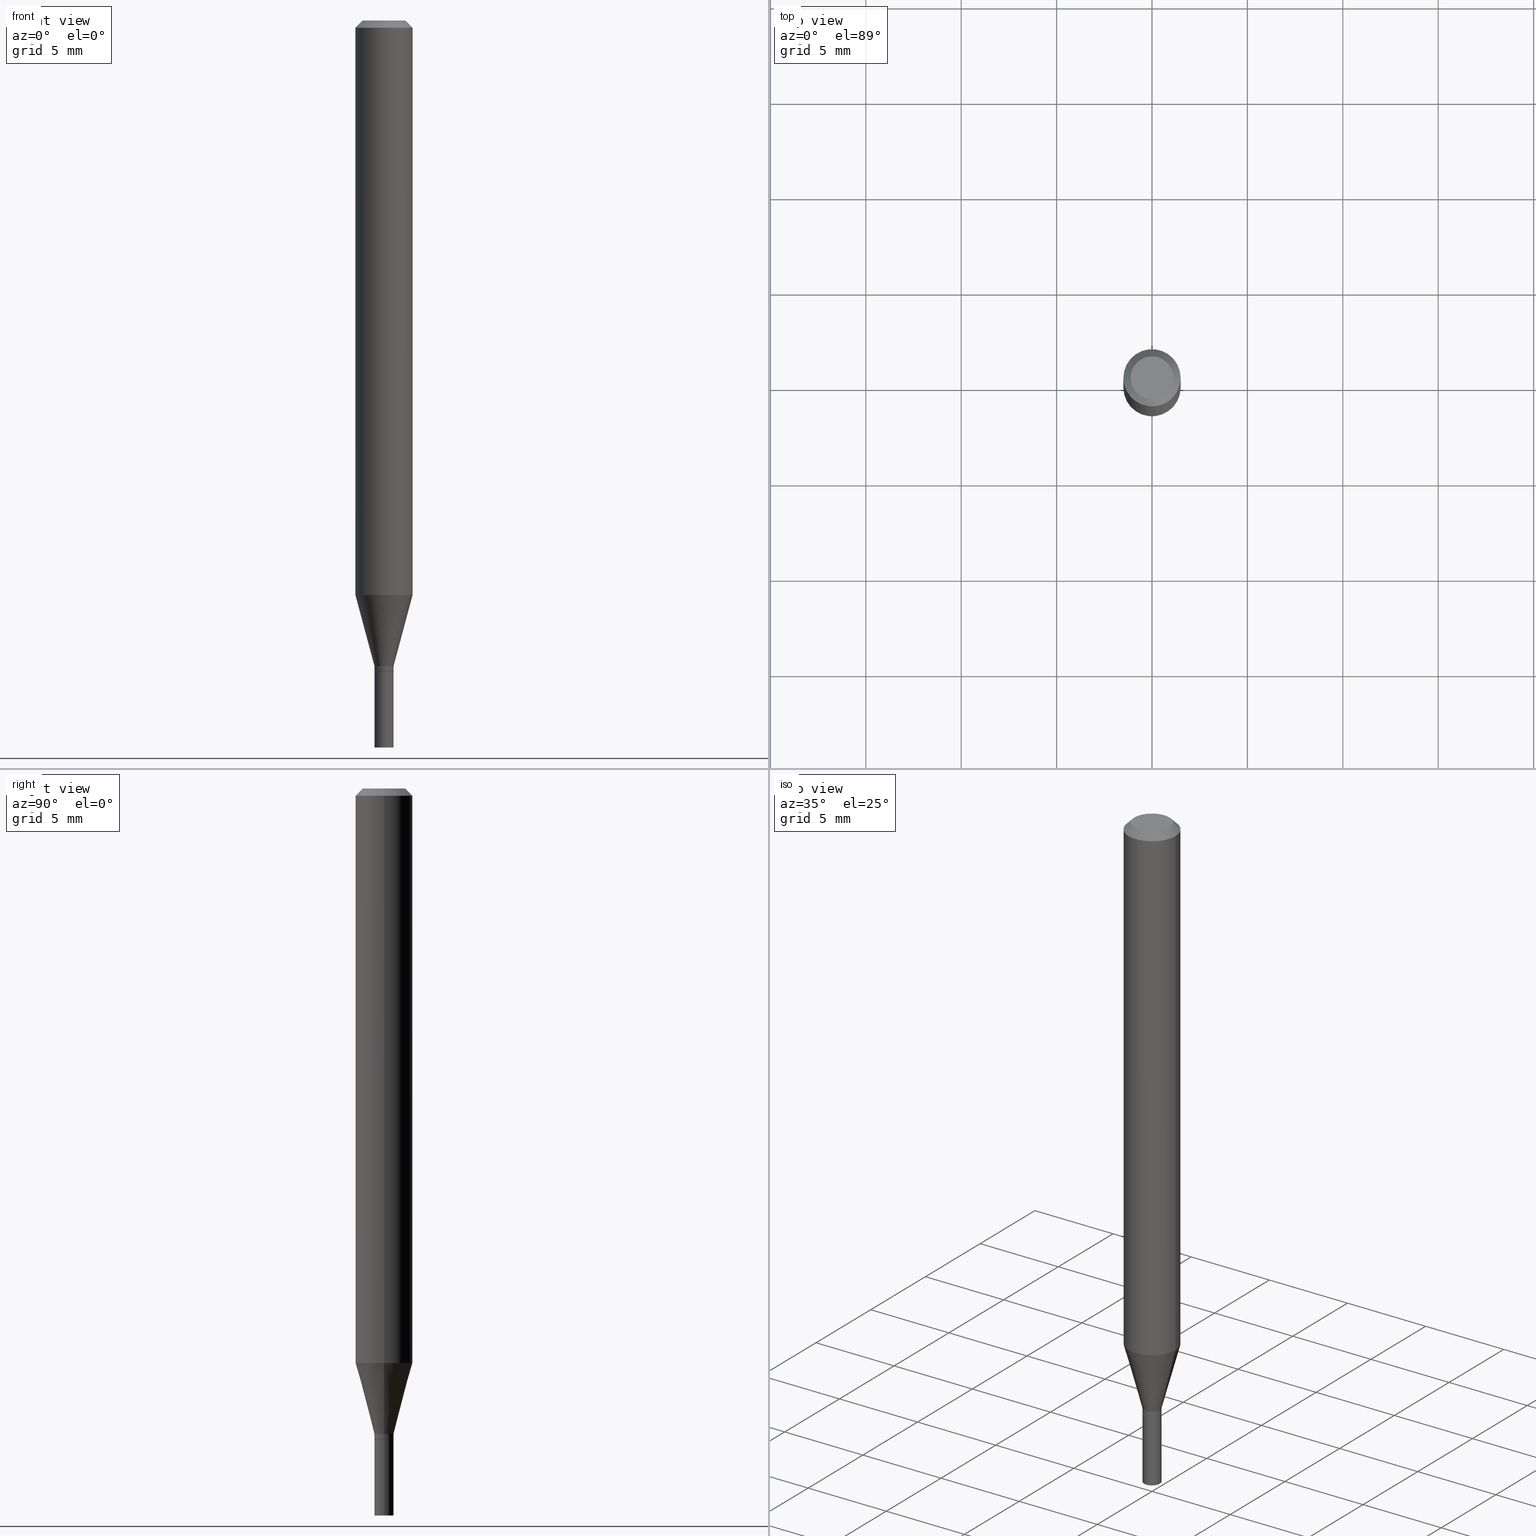
[diagram: canonical four-view strip — front | top / right | iso, engineering-drawing reading convention]
A machine part, canonical four-view strip (front | top / right | iso — engineering-drawing reading convention). The complete STEP part file that produces these views, byte-faithful:
ISO-10303-21;
HEADER;
FILE_DESCRIPTION (( 'STEP AP203' ),
    '1' );
FILE_NAME ('48522.STEP',
    '2024-03-12T19:28:23',
    ( '' ),
    ( '' ),
    'SwSTEP 2.0',
    'SolidWorks 2023',
    '' );
FILE_SCHEMA (( 'CONFIG_CONTROL_DESIGN' ));
ENDSEC;

DATA;
#1 = DIRECTION ( 'NONE',  ( 1.000000000000000000, -6.982962677686278543E-15, 0.000000000000000000 ) ) ;
#2 = CARTESIAN_POINT ( 'NONE',  ( 0.01969999999999990856, -1.375643647504188200E-16, 9.606068248317949427E-31 ) ) ;
#3 = FACE_OUTER_BOUND ( 'NONE', #15, .T. ) ;
#4 = AXIS2_PLACEMENT_3D ( 'NONE', #284, #216, #275 ) ;
#5 = ADVANCED_FACE ( 'NONE', ( #171 ), #450, .T. ) ;
#6 = LINE ( 'NONE', #2, #352 ) ;
#7 = DIRECTION ( 'NONE',  ( -2.445468806185136597E-29, 3.491481338843145583E-15, 1.000000000000000000 ) ) ;
#8 = ORIENTED_EDGE ( 'NONE', *, *, #166, .F. ) ;
#9 = ORGANIZATION ( 'UNSPECIFIED', 'UNSPECIFIED', '' ) ;
#10 = FACE_OUTER_BOUND ( 'NONE', #259, .T. ) ;
#11 = DIRECTION ( 'NONE',  ( -2.445468806185136597E-29, 3.491481338843145583E-15, 1.000000000000000000 ) ) ;
#12 = VERTEX_POINT ( 'NONE', #198 ) ;
#13 = AXIS2_PLACEMENT_3D ( 'NONE', #358, #360, #113 ) ;
#14 =( LENGTH_UNIT ( ) NAMED_UNIT ( * ) SI_UNIT ( $, .METRE. ) );
#15 = EDGE_LOOP ( 'NONE', ( #240, #99, #265, #268 ) ) ;
#16 = LINE ( 'NONE', #18, #438 ) ;
#17 = CARTESIAN_POINT ( 'NONE',  ( 0.000000000000000000, 0.000000000000000000, 0.000000000000000000 ) ) ;
#18 = CARTESIAN_POINT ( 'NONE',  ( 0.05905000000000001914, -4.123439461173741806E-16, 2.879382386107500921E-30 ) ) ;
#19 = ADVANCED_FACE ( 'NONE', ( #10 ), #389, .T. ) ;
#20 = AXIS2_PLACEMENT_3D ( 'NONE', #242, #465, #379 ) ;
#21 = APPROVAL_ROLE ( '' ) ;
#22 = ORIENTED_EDGE ( 'NONE', *, *, #400, .F. ) ;
#23 = CARTESIAN_POINT ( 'NONE',  ( -0.05905000000000001914, -3.718331978600737710E-15, -1.185143800722164409 ) ) ;
#24 = ORIENTED_EDGE ( 'NONE', *, *, #347, .T. ) ;
#25 = FACE_OUTER_BOUND ( 'NONE', #202, .T. ) ;
#26 = APPROVAL ( #405, 'UNSPECIFIED' ) ;
#27 = EDGE_CURVE ( 'NONE', #87, #435, #377, .T. ) ;
#28 = ORIENTED_EDGE ( 'NONE', *, *, #431, .F. ) ;
#29 = CIRCLE ( 'NONE', #346, 0.05905000000000001914 ) ;
#30 = FACE_OUTER_BOUND ( 'NONE', #56, .T. ) ;
#31 = EDGE_LOOP ( 'NONE', ( #361, #366, #410, #135 ) ) ;
#32 = FACE_OUTER_BOUND ( 'NONE', #380, .T. ) ;
#33 = DIRECTION ( 'NONE',  ( -2.445468806185136597E-29, 3.491481338843145583E-15, 1.000000000000000000 ) ) ;
#34 = AXIS2_PLACEMENT_3D ( 'NONE', #254, #7, #158 ) ;
#35 = DIRECTION ( 'NONE',  ( -2.445468806185136597E-29, 3.491481338843145583E-15, 1.000000000000000000 ) ) ;
#36 = DIRECTION ( 'NONE',  ( 1.000000000000000000, -6.982962677686270655E-15, 0.000000000000000000 ) ) ;
#37 = EDGE_CURVE ( 'NONE', #200, #418, #196, .T. ) ;
#38 = DIRECTION ( 'NONE',  ( -2.445468806185136597E-29, 3.491481338843145583E-15, 1.000000000000000000 ) ) ;
#39 = ADVANCED_FACE ( 'NONE', ( #458 ), #371, .T. ) ;
#40 = DIRECTION ( 'NONE',  ( -2.445468806185136877E-29, 3.491481338843145188E-15, 1.000000000000000000 ) ) ;
#41 = COORDINATED_UNIVERSAL_TIME_OFFSET ( 5, 0, .BEHIND. ) ;
#42 = DIRECTION ( 'NONE',  ( -0.7071067811865656694, 7.493145998870420424E-15, 0.7071067811865294761 ) ) ;
#43 = EDGE_LOOP ( 'NONE', ( #454, #163, #24, #414 ) ) ;
#44 = COORDINATED_UNIVERSAL_TIME_OFFSET ( 5, 0, .BEHIND. ) ;
#45 = EDGE_CURVE ( 'NONE', #190, #274, #396, .T. ) ;
#46 = DIRECTION ( 'NONE',  ( 1.000000000000000000, -6.982962677686278543E-15, 0.000000000000000000 ) ) ;
#47 = ORIENTED_EDGE ( 'NONE', *, *, #461, .F. ) ;
#48 = CC_DESIGN_APPROVAL ( #26, ( #141 ) ) ;
#49 = ORIENTED_EDGE ( 'NONE', *, *, #155, .T. ) ;
#50 = AXIS2_PLACEMENT_3D ( 'NONE', #207, #460, #424 ) ;
#51 = APPROVAL_ROLE ( '' ) ;
#52 = ADVANCED_FACE ( 'NONE', ( #430 ), #278, .F. ) ;
#53 = ORIENTED_EDGE ( 'NONE', *, *, #136, .F. ) ;
#54 = DIRECTION ( 'NONE',  ( -2.445468806185136877E-29, 3.491481338843145188E-15, 1.000000000000000000 ) ) ;
#55 = DIRECTION ( 'NONE',  ( 1.000000000000000000, 0.000000000000000000, 0.000000000000000000 ) ) ;
#56 = EDGE_LOOP ( 'NONE', ( #220, #49, #365, #359 ) ) ;
#57 = CARTESIAN_POINT ( 'NONE',  ( 0.01919999999999999485, -4.821386580808499461E-15, -1.342500000000000249 ) ) ;
#58 = CIRCLE ( 'NONE', #234, 0.01969999999999999876 ) ;
#59 = PERSON_AND_ORGANIZATION ( #333, #9 ) ;
#60 = ORIENTED_EDGE ( 'NONE', *, *, #381, .T. ) ;
#61 = PERSON_AND_ORGANIZATION_ROLE ( 'creator' ) ;
#62 = VERTEX_POINT ( 'NONE', #350 ) ;
#63 = DIRECTION ( 'NONE',  ( 1.000000000000000000, -6.982962677686265922E-15, 4.876176775795935793E-29 ) ) ;
#64 = ORIENTED_EDGE ( 'NONE', *, *, #27, .T. ) ;
#65 = CARTESIAN_POINT ( 'NONE',  ( 0.05905000000000001914, -4.647161662000214077E-16, -0.01499999999999999944 ) ) ;
#66 = DIRECTION ( 'NONE',  ( 1.000000000000000000, -6.982962677686266711E-15, 0.000000000000000000 ) ) ;
#67 = EDGE_LOOP ( 'NONE', ( #344, #139 ) ) ;
#68 = DIRECTION ( 'NONE',  ( -2.445468806185136597E-29, 3.491481338843145583E-15, 1.000000000000000000 ) ) ;
#69 = DIRECTION ( 'NONE',  ( 1.000000000000000000, -6.982962677686265922E-15, 4.819687581474398999E-29 ) ) ;
#70 = CARTESIAN_POINT ( 'NONE',  ( 3.576687321579069994E-29, -5.368277968210015545E-15, -1.500000000000000222 ) ) ;
#71 = CC_DESIGN_APPROVAL ( #209, ( #408 ) ) ;
#72 = CARTESIAN_POINT ( 'NONE',  ( 0.000000000000000000, 0.000000000000000000, 0.000000000000000000 ) ) ;
#73 = AXIS2_PLACEMENT_3D ( 'NONE', #118, #38, #434 ) ;
#74 = CC_DESIGN_DATE_AND_TIME_ASSIGNMENT ( #86, #401, ( #141 ) ) ;
#75 = CARTESIAN_POINT ( 'NONE',  ( 0.01969999999999989468, -4.788217508089488526E-15, -1.331999999999999851 ) ) ;
#76 = EDGE_CURVE ( 'NONE', #127, #443, #241, .T. ) ;
#77 = DIRECTION ( 'NONE',  ( 0.7071067811865396902, -7.319954787623229224E-15, -0.7071067811865553443 ) ) ;
#78 = CARTESIAN_POINT ( 'NONE',  ( 0.000000000000000000, 0.000000000000000000, 0.000000000000000000 ) ) ;
#79 = DIRECTION ( 'NONE',  ( 1.000000000000000000, -6.982962677686266711E-15, 0.000000000000000000 ) ) ;
#80 = VECTOR ( 'NONE', #54, 39.37007874015748143 ) ;
#81 = ADVANCED_FACE ( 'NONE', ( #32 ), #104, .T. ) ;
#82 = FACE_OUTER_BOUND ( 'NONE', #140, .T. ) ;
#83 = CALENDAR_DATE ( 2024, 12, 3 ) ;
#84 = CARTESIAN_POINT ( 'NONE',  ( 3.668203209277705088E-31, -5.237222008264718399E-17, -0.01499999999999999944 ) ) ;
#85 = APPROVAL_PERSON_ORGANIZATION ( #185, #209, #51 ) ;
#86 = DATE_AND_TIME ( #164, #243 ) ;
#87 = VERTEX_POINT ( 'NONE', #75 ) ;
#88 = CC_DESIGN_PERSON_AND_ORGANIZATION_ASSIGNMENT ( #160, #446, ( #408 ) ) ;
#89 = AXIS2_PLACEMENT_3D ( 'NONE', #348, #115, #184 ) ;
#90 = DIRECTION ( 'NONE',  ( 1.000000000000000000, -6.982962677686265922E-15, 4.819687581474398999E-29 ) ) ;
#91 = EDGE_LOOP ( 'NONE', ( #263, #225 ) ) ;
#92 = ADVANCED_FACE ( 'NONE', ( #143 ), #214, .T. ) ;
#93 = DIRECTION ( 'NONE',  ( -2.445468806185136597E-29, 3.491481338843145583E-15, 1.000000000000000000 ) ) ;
#94 = PERSON_AND_ORGANIZATION ( #333, #9 ) ;
#95 = ADVANCED_FACE ( 'NONE', ( #3 ), #286, .T. ) ;
#96 = ORIENTED_EDGE ( 'NONE', *, *, #425, .T. ) ;
#97 = AXIS2_PLACEMENT_3D ( 'NONE', #116, #258, #124 ) ;
#98 = CIRCLE ( 'NONE', #122, 0.04404999999999999888 ) ;
#99 = ORIENTED_EDGE ( 'NONE', *, *, #419, .T. ) ;
#100 = DIRECTION ( 'NONE',  ( 1.000000000000000000, -6.982962677686266711E-15, 0.000000000000000000 ) ) ;
#101 = ORIENTED_EDGE ( 'NONE', *, *, #343, .F. ) ;
#102 = ORIENTED_EDGE ( 'NONE', *, *, #419, .F. ) ;
#103 = EDGE_CURVE ( 'NONE', #435, #200, #219, .T. ) ;
#104 = CYLINDRICAL_SURFACE ( 'NONE', #341, 0.05905000000000001914 ) ;
#105 = AXIS2_PLACEMENT_3D ( 'NONE', #248, #11, #79 ) ;
#106 = CARTESIAN_POINT ( 'NONE',  ( -0.01969999999999999876, 1.399769189447397278E-16, -9.690302127802162501E-31 ) ) ;
#107 = EDGE_CURVE ( 'NONE', #330, #418, #181, .T. ) ;
#108 = LINE ( 'NONE', #106, #253 ) ;
#109 = CARTESIAN_POINT ( 'NONE',  ( 3.281819137900453618E-29, -4.685567956727501750E-15, -1.342000000000000304 ) ) ;
#110 = APPROVAL_PERSON_ORGANIZATION ( #309, #26, #21 ) ;
#111 = ADVANCED_FACE ( 'NONE', ( #322 ), #354, .F. ) ;
#112 = DIRECTION ( 'NONE',  ( -2.445468806185136597E-29, 3.491481338843145583E-15, 1.000000000000000000 ) ) ;
#113 = DIRECTION ( 'NONE',  ( -1.000000000000000000, 6.982962677686265922E-15, -4.876176775795935793E-29 ) ) ;
#114 = VECTOR ( 'NONE', #335, 39.37007874015748854 ) ;
#115 = DIRECTION ( 'NONE',  ( -2.445468806185136597E-29, 3.491481338843145583E-15, 1.000000000000000000 ) ) ;
#116 = CARTESIAN_POINT ( 'NONE',  ( 0.000000000000000000, 0.000000000000000000, 0.000000000000000000 ) ) ;
#117 = VECTOR ( 'NONE', #132, 39.37007874015748854 ) ;
#118 = CARTESIAN_POINT ( 'NONE',  ( 3.668203209277704895E-29, -5.237222008264718177E-15, -1.500000000000000222 ) ) ;
#119 = VERTEX_POINT ( 'NONE', #177 ) ;
#120 = DIRECTION ( 'NONE',  ( -2.445468806185136597E-29, 3.491481338843145583E-15, 1.000000000000000000 ) ) ;
#121 = CONICAL_SURFACE ( 'NONE', #4, 0.01919999999999999485, 0.7853981633974739252 ) ;
#122 = AXIS2_PLACEMENT_3D ( 'NONE', #294, #303, #90 ) ;
#123 = SHAPE_DEFINITION_REPRESENTATION ( #238, #411 ) ;
#124 = DIRECTION ( 'NONE',  ( 1.000000000000000000, -6.982962677686265922E-15, 4.876176775795935232E-29 ) ) ;
#125 = DATE_AND_TIME ( #257, #436 ) ;
#126 = COORDINATED_UNIVERSAL_TIME_OFFSET ( 5, 0, .BEHIND. ) ;
#127 = VERTEX_POINT ( 'NONE', #239 ) ;
#128 = EDGE_CURVE ( 'NONE', #12, #87, #226, .T. ) ;
#129 = APPROVAL_DATE_TIME ( #447, #362 ) ;
#130 = DIRECTION ( 'NONE',  ( -2.445468806185136877E-29, 3.491481338843145188E-15, 1.000000000000000000 ) ) ;
#131 = AXIS2_PLACEMENT_3D ( 'NONE', #388, #390, #355 ) ;
#132 = DIRECTION ( 'NONE',  ( -0.2588190451025211836, 5.211531920934547886E-15, 0.9659258262890679791 ) ) ;
#133 = ORIENTED_EDGE ( 'NONE', *, *, #148, .F. ) ;
#134 = DATE_AND_TIME ( #168, #137 ) ;
#135 = ORIENTED_EDGE ( 'NONE', *, *, #107, .F. ) ;
#136 = EDGE_CURVE ( 'NONE', #195, #62, #306, .T. ) ;
#137 = LOCAL_TIME ( 15, 28, 23.00000000000000000, #126 ) ;
#138 = APPROVAL_STATUS ( 'not_yet_approved' ) ;
#139 = ORIENTED_EDGE ( 'NONE', *, *, #395, .T. ) ;
#140 = EDGE_LOOP ( 'NONE', ( #101, #298, #165, #308 ) ) ;
#141 = PRODUCT_DEFINITION ( 'UNKNOWN', '', #176, #273 ) ;
#142 = DIRECTION ( 'NONE',  ( -1.000000000000000000, 6.982962677686266711E-15, 0.000000000000000000 ) ) ;
#143 = FACE_OUTER_BOUND ( 'NONE', #457, .T. ) ;
#144 = CONICAL_SURFACE ( 'NONE', #167, 0.01969999999999989468, 0.2617993877991499074 ) ;
#145 = DIRECTION ( 'NONE',  ( -2.445468806185136877E-29, 3.491481338843145188E-15, 1.000000000000000000 ) ) ;
#146 = EDGE_CURVE ( 'NONE', #232, #418, #29, .T. ) ;
#147 = FACE_OUTER_BOUND ( 'NONE', #452, .T. ) ;
#148 = EDGE_CURVE ( 'NONE', #274, #190, #288, .T. ) ;
#149 = DIRECTION ( 'NONE',  ( 1.000000000000000000, -6.982962677686253300E-15, 0.000000000000000000 ) ) ;
#150 = CARTESIAN_POINT ( 'NONE',  ( 0.04404999999999999888, -3.798447818264455642E-16, 3.533548453838735986E-16 ) ) ;
#151 = DIRECTION ( 'NONE',  ( 1.000000000000000000, -6.982962677686266711E-15, 4.876176775795935793E-29 ) ) ;
#152 = AXIS2_PLACEMENT_3D ( 'NONE', #455, #375, #63 ) ;
#153 = CARTESIAN_POINT ( 'NONE',  ( -0.01969999999999990856, 1.399769189447390869E-16, -9.690302127802118711E-31 ) ) ;
#154 = APPROVAL_DATE_TIME ( #125, #209 ) ;
#155 = EDGE_CURVE ( 'NONE', #274, #12, #244, .T. ) ;
#156 = DIRECTION ( 'NONE',  ( 2.445468806185136597E-29, -3.491481338843145583E-15, -1.000000000000000000 ) ) ;
#157 =( GEOMETRIC_REPRESENTATION_CONTEXT ( 3 ) GLOBAL_UNCERTAINTY_ASSIGNED_CONTEXT ( ( #392 ) ) GLOBAL_UNIT_ASSIGNED_CONTEXT ( ( #235, #373, #368 ) ) REPRESENTATION_CONTEXT ( 'NONE', 'WORKASPACE' ) );
#158 = DIRECTION ( 'NONE',  ( 1.000000000000000000, -6.982962677686270655E-15, 0.000000000000000000 ) ) ;
#159 = CONICAL_SURFACE ( 'NONE', #415, 0.05905000000000001914, 0.7853981633974372878 ) ;
#160 = PERSON_AND_ORGANIZATION ( #333, #9 ) ;
#161 = CC_DESIGN_PERSON_AND_ORGANIZATION_ASSIGNMENT ( #94, #231, ( #141 ) ) ;
#162 = LENGTH_MEASURE_WITH_UNIT ( LENGTH_MEASURE( 0.02539999999999999897 ), #14 );
#163 = ORIENTED_EDGE ( 'NONE', *, *, #148, .T. ) ;
#164 = CALENDAR_DATE ( 2024, 12, 3 ) ;
#165 = ORIENTED_EDGE ( 'NONE', *, *, #107, .T. ) ;
#166 = EDGE_CURVE ( 'NONE', #443, #119, #338, .T. ) ;
#167 = AXIS2_PLACEMENT_3D ( 'NONE', #282, #175, #279 ) ;
#168 = CALENDAR_DATE ( 2024, 12, 3 ) ;
#169 = VERTEX_POINT ( 'NONE', #416 ) ;
#170 = ORIENTED_EDGE ( 'NONE', *, *, #103, .F. ) ;
#171 = FACE_OUTER_BOUND ( 'NONE', #43, .T. ) ;
#172 = AXIS2_PLACEMENT_3D ( 'NONE', #180, #68, #149 ) ;
#173 = ORIENTED_EDGE ( 'NONE', *, *, #230, .T. ) ;
#174 = CYLINDRICAL_SURFACE ( 'NONE', #264, 0.01969999999999990856 ) ;
#175 = DIRECTION ( 'NONE',  ( -2.445468806185136597E-29, 3.491481338843145583E-15, 1.000000000000000000 ) ) ;
#176 = PRODUCT_DEFINITION_FORMATION_WITH_SPECIFIED_SOURCE ( 'ANY', '', #459, .NOT_KNOWN. ) ;
#177 = CARTESIAN_POINT ( 'NONE',  ( 0.01969999999999999876, -4.824878062147343257E-15, -1.342500000000000249 ) ) ;
#178 = CIRCLE ( 'NONE', #440, 0.01969999999999999876 ) ;
#179 = DIRECTION ( 'NONE',  ( 1.000000000000000000, -6.982962677686253300E-15, 0.000000000000000000 ) ) ;
#180 = CARTESIAN_POINT ( 'NONE',  ( 3.283041872303546419E-29, -4.687313697396923253E-15, -1.342500000000000249 ) ) ;
#181 = LINE ( 'NONE', #383, #296 ) ;
#182 = APPROVAL_PERSON_ORGANIZATION ( #59, #362, #199 ) ;
#183 = DIRECTION ( 'NONE',  ( 1.000000000000000000, -6.982962677686253300E-15, 0.000000000000000000 ) ) ;
#184 = DIRECTION ( 'NONE',  ( 1.000000000000000000, -6.982962677686258033E-15, 0.000000000000000000 ) ) ;
#185 = PERSON_AND_ORGANIZATION ( #333, #9 ) ;
#186 = CARTESIAN_POINT ( 'NONE',  ( 3.257364449838602072E-29, -4.650653143339069312E-15, -1.331999999999999851 ) ) ;
#187 = DIRECTION ( 'NONE',  ( -2.445468806185136597E-29, 3.491481338843145583E-15, 1.000000000000000000 ) ) ;
#188 = ORIENTED_EDGE ( 'NONE', *, *, #461, .T. ) ;
#189 = CARTESIAN_POINT ( 'NONE',  ( 3.283041872303546419E-29, -4.687313697396923253E-15, -1.342500000000000249 ) ) ;
#190 = VERTEX_POINT ( 'NONE', #237 ) ;
#191 = CARTESIAN_POINT ( 'NONE',  ( 0.05905000000000001914, -4.574846268510562433E-16, -0.01499999999999999944 ) ) ;
#192 = EDGE_LOOP ( 'NONE', ( #270, #188, #170, #334 ) ) ;
#193 = EDGE_CURVE ( 'NONE', #435, #232, #16, .T. ) ;
#194 = AXIS2_PLACEMENT_3D ( 'NONE', #70, #217, #426 ) ;
#195 = VERTEX_POINT ( 'NONE', #57 ) ;
#196 = LINE ( 'NONE', #211, #247 ) ;
#197 = MECHANICAL_CONTEXT ( 'NONE', #304, 'mechanical' ) ;
#198 = CARTESIAN_POINT ( 'NONE',  ( -0.01969999999999989468, -4.114504101497534251E-15, -1.331999999999999851 ) ) ;
#199 = APPROVAL_ROLE ( '' ) ;
#200 = VERTEX_POINT ( 'NONE', #23 ) ;
#201 = CC_DESIGN_DATE_AND_TIME_ASSIGNMENT ( #295, #439, ( #408 ) ) ;
#202 = EDGE_LOOP ( 'NONE', ( #53, #378 ) ) ;
#203 = ADVANCED_FACE ( 'NONE', ( #25 ), #311, .F. ) ;
#204 = CC_DESIGN_PERSON_AND_ORGANIZATION_ASSIGNMENT ( #293, #300, ( #176 ) ) ;
#205 = ORIENTED_EDGE ( 'NONE', *, *, #395, .F. ) ;
#206 = CIRCLE ( 'NONE', #280, 0.04404999999999999888 ) ;
#207 = CARTESIAN_POINT ( 'NONE',  ( 3.075995059520799729E-16, 0.04404999999999999888, 2.287766971589501637E-17 ) ) ;
#208 = ORIENTED_EDGE ( 'NONE', *, *, #128, .T. ) ;
#209 = APPROVAL ( #325, 'UNSPECIFIED' ) ;
#210 = PERSON_AND_ORGANIZATION ( #333, #9 ) ;
#211 = CARTESIAN_POINT ( 'NONE',  ( -0.05905000000000001914, 4.195754854663392958E-16, -2.904631170795522943E-30 ) ) ;
#212 = ADVANCED_FACE ( 'NONE', ( #317 ), #326, .T. ) ;
#213 = DIRECTION ( 'NONE',  ( 1.000000000000000000, -6.982962677686258033E-15, 0.000000000000000000 ) ) ;
#214 = CYLINDRICAL_SURFACE ( 'NONE', #131, 0.01969999999999999876 ) ;
#215 = VECTOR ( 'NONE', #77, 39.37007874015748143 ) ;
#216 = DIRECTION ( 'NONE',  ( -2.445468806185136597E-29, 3.491481338843145583E-15, 1.000000000000000000 ) ) ;
#217 = DIRECTION ( 'NONE',  ( -2.438088387897960049E-29, 3.491481338843145188E-15, 1.000000000000000000 ) ) ;
#218 = LINE ( 'NONE', #323, #297 ) ;
#219 = CIRCLE ( 'NONE', #363, 0.05905000000000001914 ) ;
#220 = ORIENTED_EDGE ( 'NONE', *, *, #45, .T. ) ;
#221 = LINE ( 'NONE', #191, #215 ) ;
#222 = ADVANCED_FACE ( 'NONE', ( #422 ), #144, .T. ) ;
#223 = DIRECTION ( 'NONE',  ( 1.000000000000000000, -6.982962677686266711E-15, 4.876176775795935793E-29 ) ) ;
#224 = COORDINATED_UNIVERSAL_TIME_OFFSET ( 5, 0, .BEHIND. ) ;
#225 = ORIENTED_EDGE ( 'NONE', *, *, #76, .F. ) ;
#226 = CIRCLE ( 'NONE', #20, 0.01969999999999989468 ) ;
#227 = CARTESIAN_POINT ( 'NONE',  ( 0.01969999999999999876, -5.374786373015138180E-15, -1.500000000000000222 ) ) ;
#228 = ORIENTED_EDGE ( 'NONE', *, *, #45, .F. ) ;
#229 = CARTESIAN_POINT ( 'NONE',  ( 0.01919999999999999485, -4.821386580808499461E-15, -1.342500000000000249 ) ) ;
#230 = EDGE_CURVE ( 'NONE', #127, #169, #108, .T. ) ;
#231 = PERSON_AND_ORGANIZATION_ROLE ( 'creator' ) ;
#232 = VERTEX_POINT ( 'NONE', #65 ) ;
#233 = CIRCLE ( 'NONE', #105, 0.05905000000000001914 ) ;
#234 = AXIS2_PLACEMENT_3D ( 'NONE', #432, #187, #250 ) ;
#235 =( CONVERSION_BASED_UNIT ( 'INCH', #162 ) LENGTH_UNIT ( ) NAMED_UNIT ( #376 ) );
#236 = EDGE_LOOP ( 'NONE', ( #96, #277 ) ) ;
#237 = CARTESIAN_POINT ( 'NONE',  ( 0.01969999999999991896, -4.823132321477920964E-15, -1.342000000000000304 ) ) ;
#238 = PRODUCT_DEFINITION_SHAPE ( 'NONE', 'NONE',  #141 ) ;
#239 = CARTESIAN_POINT ( 'NONE',  ( -0.01969999999999999876, -4.822290933886080617E-15, -1.500000000000000222 ) ) ;
#240 = ORIENTED_EDGE ( 'NONE', *, *, #37, .F. ) ;
#241 = CIRCLE ( 'NONE', #456, 0.01969999999999999876 ) ;
#242 = CARTESIAN_POINT ( 'NONE',  ( 3.257364449838602072E-29, -4.650653143339069312E-15, -1.331999999999999851 ) ) ;
#243 = LOCAL_TIME ( 15, 28, 23.00000000000000000, #260 ) ;
#244 = LINE ( 'NONE', #153, #464 ) ;
#245 = CARTESIAN_POINT ( 'NONE',  ( 0.000000000000000000, 0.000000000000000000, 0.000000000000000000 ) ) ;
#246 = DIRECTION ( 'NONE',  ( 1.000000000000000000, -6.982962677686266711E-15, 4.876176775795935793E-29 ) ) ;
#247 = VECTOR ( 'NONE', #145, 39.37007874015748143 ) ;
#248 = CARTESIAN_POINT ( 'NONE',  ( 3.668203209277705088E-31, -5.237222008264718399E-17, -0.01499999999999999944 ) ) ;
#249 = CIRCLE ( 'NONE', #301, 0.01969999999999989468 ) ;
#250 = DIRECTION ( 'NONE',  ( 1.000000000000000000, -6.982962677686278543E-15, 0.000000000000000000 ) ) ;
#251 = ORIENTED_EDGE ( 'NONE', *, *, #386, .T. ) ;
#252 = EDGE_CURVE ( 'NONE', #402, #330, #206, .T. ) ;
#253 = VECTOR ( 'NONE', #319, 39.37007874015748143 ) ;
#254 = CARTESIAN_POINT ( 'NONE',  ( 2.898232195509746702E-29, -4.137907464067076414E-15, -1.185143800722164409 ) ) ;
#255 = AXIS2_PLACEMENT_3D ( 'NONE', #462, #321, #179 ) ;
#256 = MANIFOLD_SOLID_BREP ( 'Body-Move/Copy2[1]', #413 ) ;
#257 = CALENDAR_DATE ( 2024, 12, 3 ) ;
#258 = DIRECTION ( 'NONE',  ( -2.445468806185136597E-29, 3.491481338843145583E-15, 1.000000000000000000 ) ) ;
#259 = EDGE_LOOP ( 'NONE', ( #47, #208, #64, #102 ) ) ;
#260 = COORDINATED_UNIVERSAL_TIME_OFFSET ( 5, 0, .BEHIND. ) ;
#261 = EDGE_LOOP ( 'NONE', ( #60, #173, #22, #8 ) ) ;
#262 = CARTESIAN_POINT ( 'NONE',  ( 3.257364449838602072E-29, -4.650653143339069312E-15, -1.331999999999999851 ) ) ;
#263 = ORIENTED_EDGE ( 'NONE', *, *, #381, .F. ) ;
#264 = AXIS2_PLACEMENT_3D ( 'NONE', #78, #428, #223 ) ;
#265 = ORIENTED_EDGE ( 'NONE', *, *, #193, .T. ) ;
#266 = ADVANCED_FACE ( 'NONE', ( #147 ), #121, .T. ) ;
#267 = APPROVAL_DATE_TIME ( #134, #26 ) ;
#268 = ORIENTED_EDGE ( 'NONE', *, *, #285, .F. ) ;
#269 = LINE ( 'NONE', #453, #117 ) ;
#270 = ORIENTED_EDGE ( 'NONE', *, *, #433, .T. ) ;
#271 = CIRCLE ( 'NONE', #73, 0.01969999999999999876 ) ;
#272 = ADVANCED_FACE ( 'NONE', ( #30 ), #174, .T. ) ;
#273 = DESIGN_CONTEXT ( 'detailed design', #349, 'design' ) ;
#274 = VERTEX_POINT ( 'NONE', #399 ) ;
#275 = DIRECTION ( 'NONE',  ( 1.000000000000000000, -6.982962677686253300E-15, 0.000000000000000000 ) ) ;
#276 = PRODUCT_RELATED_PRODUCT_CATEGORY ( 'detail', '', ( #459 ) ) ;
#277 = ORIENTED_EDGE ( 'NONE', *, *, #252, .T. ) ;
#278 = PLANE ( 'NONE',  #194 ) ;
#279 = DIRECTION ( 'NONE',  ( 1.000000000000000000, -6.982962677686266711E-15, 0.000000000000000000 ) ) ;
#280 = AXIS2_PLACEMENT_3D ( 'NONE', #384, #466, #69 ) ;
#281 = CARTESIAN_POINT ( 'NONE',  ( 2.898232195509746702E-29, -4.137907464067076414E-15, -1.185143800722164409 ) ) ;
#282 = CARTESIAN_POINT ( 'NONE',  ( 3.257364449838602072E-29, -4.650653143339069312E-15, -1.331999999999999851 ) ) ;
#283 = DIRECTION ( 'NONE',  ( 2.445468806185136597E-29, -3.491481338843145583E-15, -1.000000000000000000 ) ) ;
#284 = CARTESIAN_POINT ( 'NONE',  ( 3.283041872303546419E-29, -4.687313697396923253E-15, -1.342500000000000249 ) ) ;
#285 = EDGE_CURVE ( 'NONE', #418, #232, #233, .T. ) ;
#286 = CYLINDRICAL_SURFACE ( 'NONE', #423, 0.05905000000000001914 ) ;
#287 = DIRECTION ( 'NONE',  ( -0.7071067811865396902, 2.468850131082174625E-15, -0.7071067811865553443 ) ) ;
#288 = CIRCLE ( 'NONE', #89, 0.01969999999999991896 ) ;
#289 = PLANE ( 'NONE',  #13 ) ;
#290 = DIRECTION ( 'NONE',  ( -2.445468806185136877E-29, 3.491481338843145188E-15, 1.000000000000000000 ) ) ;
#291 = FACE_OUTER_BOUND ( 'NONE', #67, .T. ) ;
#292 = LOCAL_TIME ( 15, 28, 23.00000000000000000, #224 ) ;
#293 = PERSON_AND_ORGANIZATION ( #333, #9 ) ;
#294 = CARTESIAN_POINT ( 'NONE',  ( -8.641182519006289553E-45, 1.233731848647591164E-30, 3.533548453838711334E-16 ) ) ;
#295 = DATE_AND_TIME ( #83, #387 ) ;
#296 = VECTOR ( 'NONE', #287, 39.37007874015748143 ) ;
#297 = VECTOR ( 'NONE', #42, 39.37007874015748143 ) ;
#298 = ORIENTED_EDGE ( 'NONE', *, *, #425, .F. ) ;
#299 = DIRECTION ( 'NONE',  ( 1.000000000000000000, -6.982962677686266711E-15, 0.000000000000000000 ) ) ;
#300 = PERSON_AND_ORGANIZATION_ROLE ( 'design_supplier' ) ;
#301 = AXIS2_PLACEMENT_3D ( 'NONE', #262, #403, #299 ) ;
#302 = CALENDAR_DATE ( 2024, 12, 3 ) ;
#303 = DIRECTION ( 'NONE',  ( -2.445468806185136597E-29, 3.491481338843145583E-15, 1.000000000000000000 ) ) ;
#304 = APPLICATION_CONTEXT ( 'configuration controlled 3d designs of mechanical parts and assemblies' ) ;
#305 = ORIENTED_EDGE ( 'NONE', *, *, #103, .T. ) ;
#306 = CIRCLE ( 'NONE', #172, 0.01919999999999999485 ) ;
#307 = PERSON_AND_ORGANIZATION_ROLE ( 'design_owner' ) ;
#308 = ORIENTED_EDGE ( 'NONE', *, *, #285, .T. ) ;
#309 = PERSON_AND_ORGANIZATION ( #333, #9 ) ;
#310 = ORIENTED_EDGE ( 'NONE', *, *, #230, .F. ) ;
#311 = PLANE ( 'NONE',  #152 ) ;
#312 = AXIS2_PLACEMENT_3D ( 'NONE', #186, #417, #100 ) ;
#313 = CARTESIAN_POINT ( 'NONE',  ( 0.01969999999999989468, -4.788217508089488526E-15, -1.331999999999999851 ) ) ;
#314 = ORIENTED_EDGE ( 'NONE', *, *, #407, .T. ) ;
#315 = DIRECTION ( 'NONE',  ( -2.445468806185136597E-29, 3.491481338843145583E-15, 1.000000000000000000 ) ) ;
#316 = ADVANCED_FACE ( 'NONE', ( #442 ), #397, .T. ) ;
#317 = FACE_OUTER_BOUND ( 'NONE', #420, .T. ) ;
#318 = CIRCLE ( 'NONE', #34, 0.05905000000000001914 ) ;
#319 = DIRECTION ( 'NONE',  ( -2.445468806185136877E-29, 3.491481338843145188E-15, 1.000000000000000000 ) ) ;
#320 = CARTESIAN_POINT ( 'NONE',  ( 3.668203209277705088E-31, -5.237222008264718399E-17, -0.01499999999999999944 ) ) ;
#321 = DIRECTION ( 'NONE',  ( -2.445468806185136597E-29, 3.491481338843145583E-15, 1.000000000000000000 ) ) ;
#322 = FACE_OUTER_BOUND ( 'NONE', #236, .T. ) ;
#323 = CARTESIAN_POINT ( 'NONE',  ( -0.01919999999999999485, -4.550889492130984054E-15, -1.342500000000000249 ) ) ;
#324 = CLOSED_SHELL ( 'NONE', ( #272, #212, #39, #81, #222, #19, #95, #342, #111, #203, #266, #5 ) ) ;
#325 = APPROVAL_STATUS ( 'not_yet_approved' ) ;
#326 = CONICAL_SURFACE ( 'NONE', #255, 0.01919999999999999485, 0.7853981633974739252 ) ;
#327 = CARTESIAN_POINT ( 'NONE',  ( -0.04404999999999999888, 3.337856159934041534E-16, 3.533548453838689148E-16 ) ) ;
#328 = CARTESIAN_POINT ( 'NONE',  ( -0.05905000000000001914, -1.675564356608522648E-15, -0.01499999999999999944 ) ) ;
#329 = CC_DESIGN_APPROVAL ( #362, ( #176 ) ) ;
#330 = VERTEX_POINT ( 'NONE', #327 ) ;
#331 = CIRCLE ( 'NONE', #353, 0.01919999999999999485 ) ;
#332 = CC_DESIGN_PERSON_AND_ORGANIZATION_ASSIGNMENT ( #210, #61, ( #176 ) ) ;
#333 = PERSON ( 'UNSPECIFIED', 'UNSPECIFIED', 'UNSPECIFIED', ('UNSPECIFIED'), ('UNSPECIFIED'), ('UNSPECIFIED') ) ;
#334 = ORIENTED_EDGE ( 'NONE', *, *, #27, .F. ) ;
#335 = DIRECTION ( 'NONE',  ( 0.2588190451025211836, 1.565188264969622559E-15, 0.9659258262890679791 ) ) ;
#336 = APPLICATION_PROTOCOL_DEFINITION ( 'international standard', 'config_control_design', 1994, #304 ) ;
#337 = ORIENTED_EDGE ( 'NONE', *, *, #146, .F. ) ;
#338 = LINE ( 'NONE', #367, #80 ) ;
#339 = APPLICATION_PROTOCOL_DEFINITION ( 'international standard', 'config_control_design', 1994, #349 ) ;
#340 = ORIENTED_EDGE ( 'NONE', *, *, #166, .T. ) ;
#341 = AXIS2_PLACEMENT_3D ( 'NONE', #245, #315, #246 ) ;
#342 = ADVANCED_FACE ( 'NONE', ( #82 ), #159, .T. ) ;
#343 = EDGE_CURVE ( 'NONE', #402, #232, #221, .T. ) ;
#344 = ORIENTED_EDGE ( 'NONE', *, *, #400, .T. ) ;
#345 = ORIENTED_EDGE ( 'NONE', *, *, #407, .F. ) ;
#346 = AXIS2_PLACEMENT_3D ( 'NONE', #427, #112, #66 ) ;
#347 = EDGE_CURVE ( 'NONE', #190, #87, #6, .T. ) ;
#348 = CARTESIAN_POINT ( 'NONE',  ( 3.281819137900453618E-29, -4.685567956727501750E-15, -1.342000000000000304 ) ) ;
#349 = APPLICATION_CONTEXT ( 'configuration controlled 3d designs of mechanical parts and assemblies' ) ;
#350 = CARTESIAN_POINT ( 'NONE',  ( -0.01919999999999999485, -4.548240264956872853E-15, -1.342500000000000249 ) ) ;
#351 = CARTESIAN_POINT ( 'NONE',  ( 3.668203209277704895E-29, -5.237222008264718177E-15, -1.500000000000000222 ) ) ;
#352 = VECTOR ( 'NONE', #40, 39.37007874015748143 ) ;
#353 = AXIS2_PLACEMENT_3D ( 'NONE', #189, #120, #183 ) ;
#354 = PLANE ( 'NONE',  #50 ) ;
#355 = DIRECTION ( 'NONE',  ( 1.000000000000000000, -6.982962677686265922E-15, 4.876176775795935232E-29 ) ) ;
#356 = AXIS2_PLACEMENT_3D ( 'NONE', #17, #449, #55 ) ;
#357 = DIRECTION ( 'NONE',  ( -1.000000000000000000, 6.982962677686266711E-15, 0.000000000000000000 ) ) ;
#358 = CARTESIAN_POINT ( 'NONE',  ( 1.375643647504522233E-16, 0.01969999999999531154, -1.342500000000000249 ) ) ;
#359 = ORIENTED_EDGE ( 'NONE', *, *, #347, .F. ) ;
#360 = DIRECTION ( 'NONE',  ( 2.438088387897960049E-29, -3.491481338843145188E-15, -1.000000000000000000 ) ) ;
#361 = ORIENTED_EDGE ( 'NONE', *, *, #252, .F. ) ;
#362 = APPROVAL ( #138, 'UNSPECIFIED' ) ;
#363 = AXIS2_PLACEMENT_3D ( 'NONE', #281, #33, #36 ) ;
#364 = LINE ( 'NONE', #229, #372 ) ;
#365 = ORIENTED_EDGE ( 'NONE', *, *, #433, .F. ) ;
#366 = ORIENTED_EDGE ( 'NONE', *, *, #343, .T. ) ;
#367 = CARTESIAN_POINT ( 'NONE',  ( 0.01969999999999999876, -1.375643647504194363E-16, 9.606068248317991466E-31 ) ) ;
#368 =( NAMED_UNIT ( * ) SI_UNIT ( $, .STERADIAN. ) SOLID_ANGLE_UNIT ( ) );
#369 = DIRECTION ( 'NONE',  ( 1.000000000000000000, -6.982962677686266711E-15, 4.876176775795935793E-29 ) ) ;
#370 = ADVANCED_FACE ( 'NONE', ( #291 ), #289, .F. ) ;
#371 = CONICAL_SURFACE ( 'NONE', #429, 0.05905000000000001914, 0.7853981633974372878 ) ;
#372 = VECTOR ( 'NONE', #409, 39.37007874015748143 ) ;
#373 =( NAMED_UNIT ( * ) PLANE_ANGLE_UNIT ( ) SI_UNIT ( $, .RADIAN. ) );
#374 = ORIENTED_EDGE ( 'NONE', *, *, #136, .T. ) ;
#375 = DIRECTION ( 'NONE',  ( -2.438088387897960049E-29, 3.491481338843145188E-15, 1.000000000000000000 ) ) ;
#376 = DIMENSIONAL_EXPONENTS ( 1.000000000000000000, 0.000000000000000000, 0.000000000000000000, 0.000000000000000000, 0.000000000000000000, 0.000000000000000000, 0.000000000000000000 ) ;
#377 = LINE ( 'NONE', #313, #114 ) ;
#378 = ORIENTED_EDGE ( 'NONE', *, *, #386, .F. ) ;
#379 = DIRECTION ( 'NONE',  ( 1.000000000000000000, -6.982962677686266711E-15, 0.000000000000000000 ) ) ;
#380 = EDGE_LOOP ( 'NONE', ( #305, #445, #337, #398 ) ) ;
#381 = EDGE_CURVE ( 'NONE', #443, #127, #271, .T. ) ;
#382 = AXIS2_PLACEMENT_3D ( 'NONE', #406, #93, #369 ) ;
#383 = CARTESIAN_POINT ( 'NONE',  ( -0.05905000000000001914, 3.599717260347269535E-16, -0.01499999999999999944 ) ) ;
#384 = CARTESIAN_POINT ( 'NONE',  ( -8.641182519006289553E-45, 1.233731848647591164E-30, 3.533548453838711334E-16 ) ) ;
#385 = DIRECTION ( 'NONE',  ( -2.445468806185136597E-29, 3.491481338843145583E-15, 1.000000000000000000 ) ) ;
#386 = EDGE_CURVE ( 'NONE', #62, #195, #331, .T. ) ;
#387 = LOCAL_TIME ( 15, 28, 23.00000000000000000, #44 ) ;
#388 = CARTESIAN_POINT ( 'NONE',  ( 0.000000000000000000, 0.000000000000000000, 0.000000000000000000 ) ) ;
#389 = CONICAL_SURFACE ( 'NONE', #312, 0.01969999999999989468, 0.2617993877991499074 ) ;
#390 = DIRECTION ( 'NONE',  ( -2.445468806185136597E-29, 3.491481338843145583E-15, 1.000000000000000000 ) ) ;
#391 = DIRECTION ( 'NONE',  ( -2.445468806185136597E-29, 3.491481338843145583E-15, 1.000000000000000000 ) ) ;
#392 = UNCERTAINTY_MEASURE_WITH_UNIT (LENGTH_MEASURE( 1.000000000000000082E-05 ), #235, 'distance_accuracy_value', 'NONE');
#393 = CC_DESIGN_SECURITY_CLASSIFICATION ( #408, ( #176 ) ) ;
#394 = CARTESIAN_POINT ( 'NONE',  ( 3.283041872303546419E-29, -4.687313697396923253E-15, -1.342500000000000249 ) ) ;
#395 = EDGE_CURVE ( 'NONE', #169, #119, #58, .T. ) ;
#396 = CIRCLE ( 'NONE', #463, 0.01969999999999991896 ) ;
#397 = CYLINDRICAL_SURFACE ( 'NONE', #97, 0.01969999999999999876 ) ;
#398 = ORIENTED_EDGE ( 'NONE', *, *, #193, .F. ) ;
#399 = CARTESIAN_POINT ( 'NONE',  ( -0.01969999999999991896, -4.545591037782763230E-15, -1.342000000000000304 ) ) ;
#400 = EDGE_CURVE ( 'NONE', #119, #169, #178, .T. ) ;
#401 = DATE_TIME_ROLE ( 'creation_date' ) ;
#402 = VERTEX_POINT ( 'NONE', #150 ) ;
#403 = DIRECTION ( 'NONE',  ( -2.445468806185136597E-29, 3.491481338843145583E-15, 1.000000000000000000 ) ) ;
#404 = ORIENTED_EDGE ( 'NONE', *, *, #76, .T. ) ;
#405 = APPROVAL_STATUS ( 'not_yet_approved' ) ;
#406 = CARTESIAN_POINT ( 'NONE',  ( 0.000000000000000000, 0.000000000000000000, 0.000000000000000000 ) ) ;
#407 = EDGE_CURVE ( 'NONE', #62, #274, #218, .T. ) ;
#408 = SECURITY_CLASSIFICATION ( '', '', #437 ) ;
#409 = DIRECTION ( 'NONE',  ( 0.7071067811865656694, -2.468850131082446387E-15, 0.7071067811865294761 ) ) ;
#410 = ORIENTED_EDGE ( 'NONE', *, *, #146, .T. ) ;
#411 = ADVANCED_BREP_SHAPE_REPRESENTATION ( '48522', ( #256, #412, #356 ), #157 ) ;
#412 = MANIFOLD_SOLID_BREP ( 'Body-Move/Copy2[2]', #324 ) ;
#413 = CLOSED_SHELL ( 'NONE', ( #316, #52, #92, #370 ) ) ;
#414 = ORIENTED_EDGE ( 'NONE', *, *, #128, .F. ) ;
#415 = AXIS2_PLACEMENT_3D ( 'NONE', #84, #156, #357 ) ;
#416 = CARTESIAN_POINT ( 'NONE',  ( -0.01969999999999999876, -4.822290933886080617E-15, -1.342500000000000249 ) ) ;
#417 = DIRECTION ( 'NONE',  ( -2.445468806185136597E-29, 3.491481338843145583E-15, 1.000000000000000000 ) ) ;
#418 = VERTEX_POINT ( 'NONE', #328 ) ;
#419 = EDGE_CURVE ( 'NONE', #200, #435, #318, .T. ) ;
#420 = EDGE_LOOP ( 'NONE', ( #374, #314, #228, #28 ) ) ;
#421 = DIRECTION ( 'NONE',  ( -2.445468806185136597E-29, 3.491481338843145583E-15, 1.000000000000000000 ) ) ;
#422 = FACE_OUTER_BOUND ( 'NONE', #192, .T. ) ;
#423 = AXIS2_PLACEMENT_3D ( 'NONE', #72, #35, #151 ) ;
#424 = DIRECTION ( 'NONE',  ( -1.000000000000000000, 6.982962677686265922E-15, -4.876176775795935793E-29 ) ) ;
#425 = EDGE_CURVE ( 'NONE', #330, #402, #98, .T. ) ;
#426 = DIRECTION ( 'NONE',  ( 1.000000000000000000, -6.982962677686265922E-15, 4.876176775795935793E-29 ) ) ;
#427 = CARTESIAN_POINT ( 'NONE',  ( 3.668203209277705088E-31, -5.237222008264718399E-17, -0.01499999999999999944 ) ) ;
#428 = DIRECTION ( 'NONE',  ( -2.445468806185136597E-29, 3.491481338843145583E-15, 1.000000000000000000 ) ) ;
#429 = AXIS2_PLACEMENT_3D ( 'NONE', #320, #283, #142 ) ;
#430 = FACE_OUTER_BOUND ( 'NONE', #91, .T. ) ;
#431 = EDGE_CURVE ( 'NONE', #195, #190, #364, .T. ) ;
#432 = CARTESIAN_POINT ( 'NONE',  ( 3.283041872303546419E-29, -4.687313697396923253E-15, -1.342500000000000249 ) ) ;
#433 = EDGE_CURVE ( 'NONE', #87, #12, #249, .T. ) ;
#434 = DIRECTION ( 'NONE',  ( 1.000000000000000000, -6.982962677686278543E-15, 0.000000000000000000 ) ) ;
#435 = VERTEX_POINT ( 'NONE', #451 ) ;
#436 = LOCAL_TIME ( 15, 28, 23.00000000000000000, #41 ) ;
#437 = SECURITY_CLASSIFICATION_LEVEL ( 'unclassified' ) ;
#438 = VECTOR ( 'NONE', #130, 39.37007874015748143 ) ;
#439 = DATE_TIME_ROLE ( 'classification_date' ) ;
#440 = AXIS2_PLACEMENT_3D ( 'NONE', #394, #391, #46 ) ;
#441 = CC_DESIGN_PERSON_AND_ORGANIZATION_ASSIGNMENT ( #444, #307, ( #459 ) ) ;
#442 = FACE_OUTER_BOUND ( 'NONE', #261, .T. ) ;
#443 = VERTEX_POINT ( 'NONE', #227 ) ;
#444 = PERSON_AND_ORGANIZATION ( #333, #9 ) ;
#445 = ORIENTED_EDGE ( 'NONE', *, *, #37, .T. ) ;
#446 = PERSON_AND_ORGANIZATION_ROLE ( 'classification_officer' ) ;
#447 = DATE_AND_TIME ( #302, #292 ) ;
#448 = ORIENTED_EDGE ( 'NONE', *, *, #431, .T. ) ;
#449 = DIRECTION ( 'NONE',  ( 0.000000000000000000, 0.000000000000000000, 1.000000000000000000 ) ) ;
#450 = CYLINDRICAL_SURFACE ( 'NONE', #382, 0.01969999999999990856 ) ;
#451 = CARTESIAN_POINT ( 'NONE',  ( 0.05905000000000001914, -4.550251410184451334E-15, -1.185143800722164409 ) ) ;
#452 = EDGE_LOOP ( 'NONE', ( #345, #251, #448, #133 ) ) ;
#453 = CARTESIAN_POINT ( 'NONE',  ( -0.01969999999999989468, -4.510676224394330003E-15, -1.331999999999999851 ) ) ;
#454 = ORIENTED_EDGE ( 'NONE', *, *, #155, .F. ) ;
#455 = CARTESIAN_POINT ( 'NONE',  ( 3.283041872303546419E-29, -4.687313697396923253E-15, -1.342500000000000249 ) ) ;
#456 = AXIS2_PLACEMENT_3D ( 'NONE', #351, #421, #1 ) ;
#457 = EDGE_LOOP ( 'NONE', ( #310, #404, #340, #205 ) ) ;
#458 = FACE_OUTER_BOUND ( 'NONE', #31, .T. ) ;
#459 = PRODUCT ( '48522', '48522', '', ( #197 ) ) ;
#460 = DIRECTION ( 'NONE',  ( 2.438088387897960049E-29, -3.491481338843145188E-15, -1.000000000000000000 ) ) ;
#461 = EDGE_CURVE ( 'NONE', #12, #200, #269, .T. ) ;
#462 = CARTESIAN_POINT ( 'NONE',  ( 3.283041872303546419E-29, -4.687313697396923253E-15, -1.342500000000000249 ) ) ;
#463 = AXIS2_PLACEMENT_3D ( 'NONE', #109, #385, #213 ) ;
#464 = VECTOR ( 'NONE', #290, 39.37007874015748143 ) ;
#465 = DIRECTION ( 'NONE',  ( -2.445468806185136597E-29, 3.491481338843145583E-15, 1.000000000000000000 ) ) ;
#466 = DIRECTION ( 'NONE',  ( -2.445468806185136597E-29, 3.491481338843145583E-15, 1.000000000000000000 ) ) ;
ENDSEC;
END-ISO-10303-21;
